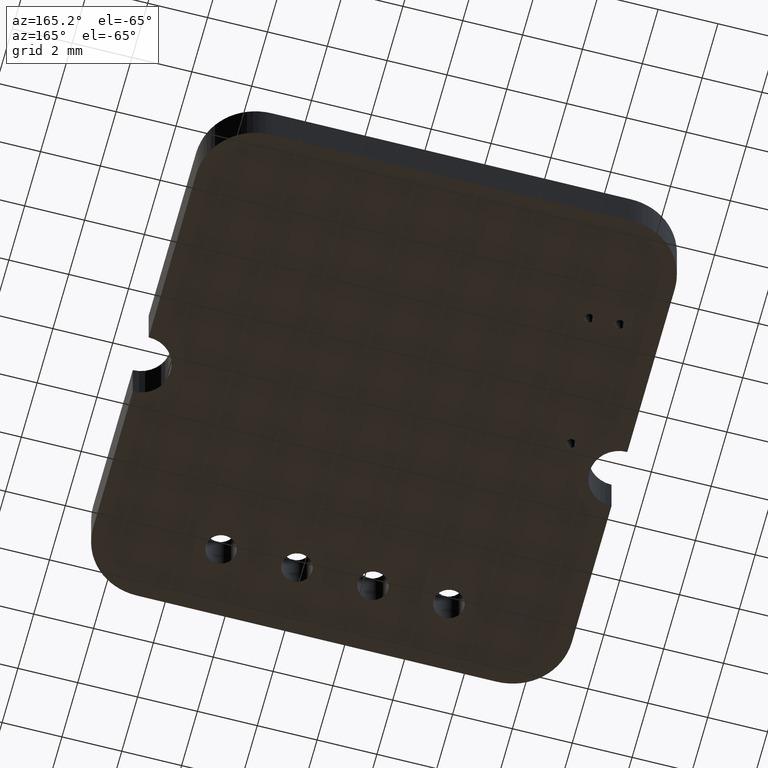
[diagram: clean part render]
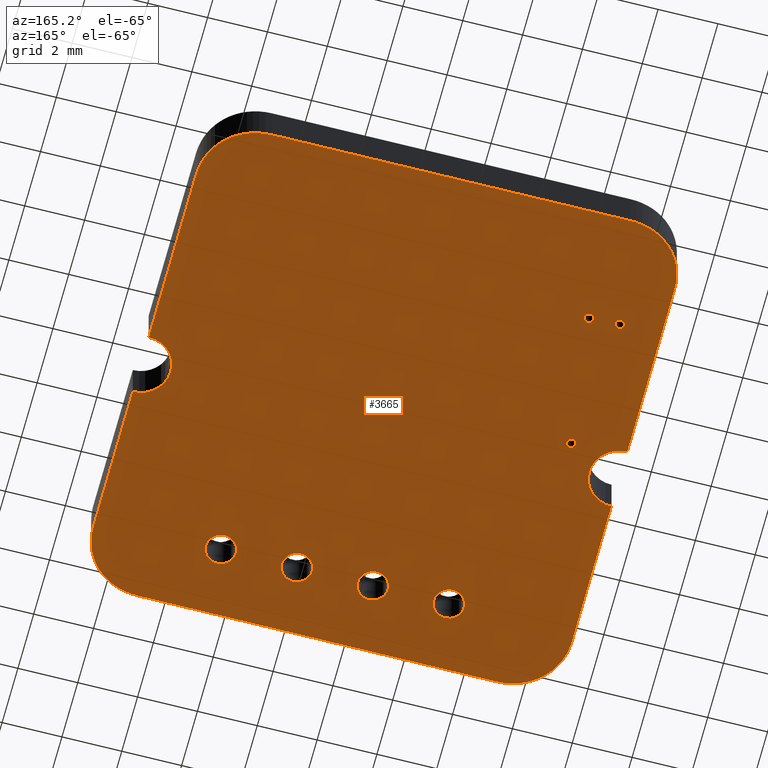
[diagram: same view with one face highlighted and labeled with its STEP entity id]
A machine part, auxiliary view. The second image highlights one B-rep face of the part: STEP entity #3665.
In plain terms, the highlighted planar face has unit normal (0, 0, -1).
Its self-contained STEP definition (entity closure, byte-faithful):
#53 = VERTEX_POINT('',#54);
#54 = CARTESIAN_POINT('',(14.889,-1.669,-0.82));
#71 = VERTEX_POINT('',#72);
#72 = CARTESIAN_POINT('',(2.889,-1.669,-0.82));
#78 = EDGE_CURVE('',#53,#71,#79,.T.);
#79 = LINE('',#80,#81);
#80 = CARTESIAN_POINT('',(14.889,-1.669,-0.82));
#81 = VECTOR('',#82,1.);
#82 = DIRECTION('',(-1.,0.E+000,0.E+000));
#93 = VERTEX_POINT('',#94);
#94 = CARTESIAN_POINT('',(15.09686,-1.6791,-0.82));
#109 = EDGE_CURVE('',#93,#53,#110,.T.);
#110 = LINE('',#111,#112);
#111 = CARTESIAN_POINT('',(15.09686,-1.6791,-0.82));
#112 = VECTOR('',#113,1.);
#113 = DIRECTION('',(-0.998821572954,4.853313714442E-002,0.E+000));
#133 = VERTEX_POINT('',#134);
#134 = CARTESIAN_POINT('',(2.68114,-1.6791,-0.82));
#140 = EDGE_CURVE('',#71,#133,#141,.T.);
#141 = LINE('',#142,#143);
#142 = CARTESIAN_POINT('',(2.889,-1.669,-0.82));
#143 = VECTOR('',#144,1.);
#144 = DIRECTION('',(-0.998821572954,-4.853313714442E-002,0.E+000));
#155 = VERTEX_POINT('',#156);
#156 = CARTESIAN_POINT('',(15.29794,-1.70879,-0.82));
#171 = EDGE_CURVE('',#155,#93,#172,.T.);
#172 = LINE('',#173,#174);
#173 = CARTESIAN_POINT('',(15.29794,-1.70879,-0.82));
#174 = VECTOR('',#175,1.);
#175 = DIRECTION('',(-0.989274402589,0.146069012397,0.E+000));
#195 = VERTEX_POINT('',#196);
#196 = CARTESIAN_POINT('',(2.48006,-1.70879,-0.82));
#202 = EDGE_CURVE('',#133,#195,#203,.T.);
#203 = LINE('',#204,#205);
#204 = CARTESIAN_POINT('',(2.68114,-1.6791,-0.82));
#205 = VECTOR('',#206,1.);
#206 = DIRECTION('',(-0.989274402589,-0.146069012397,0.E+000));
#217 = VERTEX_POINT('',#218);
#218 = CARTESIAN_POINT('',(15.49133,-1.75717,-0.82));
#233 = EDGE_CURVE('',#217,#155,#234,.T.);
#234 = LINE('',#235,#236);
#235 = CARTESIAN_POINT('',(15.49133,-1.75717,-0.82));
#236 = VECTOR('',#237,1.);
#237 = DIRECTION('',(-0.970104127996,0.242689062063,0.E+000));
#257 = VERTEX_POINT('',#258);
#258 = CARTESIAN_POINT('',(2.28667,-1.75717,-0.82));
#264 = EDGE_CURVE('',#195,#257,#265,.T.);
#265 = LINE('',#266,#267);
#266 = CARTESIAN_POINT('',(2.48006,-1.70879,-0.82));
#267 = VECTOR('',#268,1.);
#268 = DIRECTION('',(-0.970104127996,-0.242689062063,0.E+000));
#279 = VERTEX_POINT('',#280);
#280 = CARTESIAN_POINT('',(15.67611,-1.8233,-0.82));
#295 = EDGE_CURVE('',#279,#217,#296,.T.);
#296 = LINE('',#297,#298);
#297 = CARTESIAN_POINT('',(15.67611,-1.8233,-0.82));
#298 = VECTOR('',#299,1.);
#299 = DIRECTION('',(-0.941520370828,0.336956067339,0.E+000));
#319 = VERTEX_POINT('',#320);
#320 = CARTESIAN_POINT('',(2.10189,-1.8233,-0.82));
#326 = EDGE_CURVE('',#257,#319,#327,.T.);
#327 = LINE('',#328,#329);
#328 = CARTESIAN_POINT('',(2.28667,-1.75717,-0.82));
#329 = VECTOR('',#330,1.);
#330 = DIRECTION('',(-0.941520370828,-0.336956067339,0.E+000));
#341 = VERTEX_POINT('',#342);
#342 = CARTESIAN_POINT('',(15.85137,-1.90627,-0.82));
#357 = EDGE_CURVE('',#341,#279,#358,.T.);
#358 = LINE('',#359,#360);
#359 = CARTESIAN_POINT('',(15.85137,-1.90627,-0.82));
#360 = VECTOR('',#361,1.);
#361 = DIRECTION('',(-0.90383337441,0.42788460045,0.E+000));
#381 = VERTEX_POINT('',#382);
#382 = CARTESIAN_POINT('',(1.92663,-1.90627,-0.82));
#388 = EDGE_CURVE('',#319,#381,#389,.T.);
#389 = LINE('',#390,#391);
#390 = CARTESIAN_POINT('',(2.10189,-1.8233,-0.82));
#391 = VECTOR('',#392,1.);
#392 = DIRECTION('',(-0.90383337441,-0.42788460045,0.E+000));
#403 = VERTEX_POINT('',#404);
#404 = CARTESIAN_POINT('',(16.0162,-2.00518,-0.82));
#419 = EDGE_CURVE('',#403,#341,#420,.T.);
#420 = LINE('',#421,#422);
#421 = CARTESIAN_POINT('',(16.0162,-2.00518,-0.82));
#422 = VECTOR('',#423,1.);
#423 = DIRECTION('',(-0.857465383851,0.514541655746,0.E+000));
#443 = VERTEX_POINT('',#444);
#444 = CARTESIAN_POINT('',(1.7618,-2.00518,-0.82));
#450 = EDGE_CURVE('',#381,#443,#451,.T.);
#451 = LINE('',#452,#453);
#452 = CARTESIAN_POINT('',(1.92663,-1.90627,-0.82));
#453 = VECTOR('',#454,1.);
#454 = DIRECTION('',(-0.857465383851,-0.514541655746,0.E+000));
#465 = VERTEX_POINT('',#466);
#466 = CARTESIAN_POINT('',(16.16967,-2.1191,-0.82));
#481 = EDGE_CURVE('',#465,#403,#482,.T.);
#482 = LINE('',#483,#484);
#483 = CARTESIAN_POINT('',(16.16967,-2.1191,-0.82));
#484 = VECTOR('',#485,1.);
#485 = DIRECTION('',(-0.802959902094,0.596033049108,0.E+000));
#505 = VERTEX_POINT('',#506);
#506 = CARTESIAN_POINT('',(1.60833,-2.1191,-0.82));
#512 = EDGE_CURVE('',#443,#505,#513,.T.);
#513 = LINE('',#514,#515);
#514 = CARTESIAN_POINT('',(1.7618,-2.00518,-0.82));
#515 = VECTOR('',#516,1.);
#516 = DIRECTION('',(-0.802959902094,-0.596033049108,0.E+000));
#527 = VERTEX_POINT('',#528);
#528 = CARTESIAN_POINT('',(16.31088,-2.24712,-0.82));
#543 = EDGE_CURVE('',#527,#465,#544,.T.);
#544 = LINE('',#545,#546);
#545 = CARTESIAN_POINT('',(16.31088,-2.24712,-0.82));
#546 = VECTOR('',#547,1.);
#547 = DIRECTION('',(-0.740860487423,0.671658944833,0.E+000));
#567 = VERTEX_POINT('',#568);
#568 = CARTESIAN_POINT('',(1.46712,-2.24712,-0.82));
#574 = EDGE_CURVE('',#505,#567,#575,.T.);
#575 = LINE('',#576,#577);
#576 = CARTESIAN_POINT('',(1.60833,-2.1191,-0.82));
#577 = VECTOR('',#578,1.);
#578 = DIRECTION('',(-0.740860487423,-0.671658944833,0.E+000));
#589 = VERTEX_POINT('',#590);
#590 = CARTESIAN_POINT('',(16.4389,-2.38833,-0.82));
#605 = EDGE_CURVE('',#589,#527,#606,.T.);
#606 = LINE('',#607,#608);
#607 = CARTESIAN_POINT('',(16.4389,-2.38833,-0.82));
#608 = VECTOR('',#609,1.);
#609 = DIRECTION('',(-0.671658944833,0.740860487423,0.E+000));
#629 = VERTEX_POINT('',#630);
#630 = CARTESIAN_POINT('',(1.3391,-2.38833,-0.82));
#636 = EDGE_CURVE('',#567,#629,#637,.T.);
#637 = LINE('',#638,#639);
#638 = CARTESIAN_POINT('',(1.46712,-2.24712,-0.82));
#639 = VECTOR('',#640,1.);
#640 = DIRECTION('',(-0.671658944833,-0.740860487423,0.E+000));
#651 = VERTEX_POINT('',#652);
#652 = CARTESIAN_POINT('',(16.55282,-2.5418,-0.82));
#667 = EDGE_CURVE('',#651,#589,#668,.T.);
#668 = LINE('',#669,#670);
#669 = CARTESIAN_POINT('',(16.55282,-2.5418,-0.82));
#670 = VECTOR('',#671,1.);
#671 = DIRECTION('',(-0.596033049108,0.802959902094,0.E+000));
#691 = VERTEX_POINT('',#692);
#692 = CARTESIAN_POINT('',(1.22518,-2.5418,-0.82));
#698 = EDGE_CURVE('',#629,#691,#699,.T.);
#699 = LINE('',#700,#701);
#700 = CARTESIAN_POINT('',(1.3391,-2.38833,-0.82));
#701 = VECTOR('',#702,1.);
#702 = DIRECTION('',(-0.596033049108,-0.802959902094,0.E+000));
#713 = VERTEX_POINT('',#714);
#714 = CARTESIAN_POINT('',(16.65173,-2.70663,-0.82));
#729 = EDGE_CURVE('',#713,#651,#730,.T.);
#730 = LINE('',#731,#732);
#731 = CARTESIAN_POINT('',(16.65173,-2.70663,-0.82));
#732 = VECTOR('',#733,1.);
#733 = DIRECTION('',(-0.514541655746,0.857465383851,0.E+000));
#753 = VERTEX_POINT('',#754);
#754 = CARTESIAN_POINT('',(1.12627,-2.70663,-0.82));
#760 = EDGE_CURVE('',#691,#753,#761,.T.);
#761 = LINE('',#762,#763);
#762 = CARTESIAN_POINT('',(1.22518,-2.5418,-0.82));
#763 = VECTOR('',#764,1.);
#764 = DIRECTION('',(-0.514541655746,-0.857465383851,0.E+000));
#775 = VERTEX_POINT('',#776);
#776 = CARTESIAN_POINT('',(16.7347,-2.88189,-0.82));
#791 = EDGE_CURVE('',#775,#713,#792,.T.);
#792 = LINE('',#793,#794);
#793 = CARTESIAN_POINT('',(16.7347,-2.88189,-0.82));
#794 = VECTOR('',#795,1.);
#795 = DIRECTION('',(-0.42788460045,0.90383337441,0.E+000));
#815 = VERTEX_POINT('',#816);
#816 = CARTESIAN_POINT('',(1.0433,-2.88189,-0.82));
#822 = EDGE_CURVE('',#753,#815,#823,.T.);
#823 = LINE('',#824,#825);
#824 = CARTESIAN_POINT('',(1.12627,-2.70663,-0.82));
#825 = VECTOR('',#826,1.);
#826 = DIRECTION('',(-0.42788460045,-0.90383337441,0.E+000));
#837 = VERTEX_POINT('',#838);
#838 = CARTESIAN_POINT('',(16.80083,-3.06667,-0.82));
#853 = EDGE_CURVE('',#837,#775,#854,.T.);
#854 = LINE('',#855,#856);
#855 = CARTESIAN_POINT('',(16.80083,-3.06667,-0.82));
#856 = VECTOR('',#857,1.);
#857 = DIRECTION('',(-0.336956067339,0.941520370828,0.E+000));
#877 = VERTEX_POINT('',#878);
#878 = CARTESIAN_POINT('',(0.97717,-3.06667,-0.82));
#884 = EDGE_CURVE('',#815,#877,#885,.T.);
#885 = LINE('',#886,#887);
#886 = CARTESIAN_POINT('',(1.0433,-2.88189,-0.82));
#887 = VECTOR('',#888,1.);
#888 = DIRECTION('',(-0.336956067339,-0.941520370828,0.E+000));
#899 = VERTEX_POINT('',#900);
#900 = CARTESIAN_POINT('',(16.8492,-3.26006,-0.82));
#915 = EDGE_CURVE('',#899,#837,#916,.T.);
#916 = LINE('',#917,#918);
#917 = CARTESIAN_POINT('',(16.8492,-3.26006,-0.82));
#918 = VECTOR('',#919,1.);
#919 = DIRECTION('',(-0.24264185261,0.970115937073,0.E+000));
#939 = VERTEX_POINT('',#940);
#940 = CARTESIAN_POINT('',(0.9288,-3.26006,-0.82));
#946 = EDGE_CURVE('',#877,#939,#947,.T.);
#947 = LINE('',#948,#949);
#948 = CARTESIAN_POINT('',(0.97717,-3.06667,-0.82));
#949 = VECTOR('',#950,1.);
#950 = DIRECTION('',(-0.24264185261,-0.970115937073,0.E+000));
#961 = VERTEX_POINT('',#962);
#962 = CARTESIAN_POINT('',(16.8789,-3.46114,-0.82));
#977 = EDGE_CURVE('',#961,#899,#978,.T.);
#978 = LINE('',#979,#980);
#979 = CARTESIAN_POINT('',(16.8789,-3.46114,-0.82));
#980 = VECTOR('',#981,1.);
#981 = DIRECTION('',(-0.146117160232,0.989267292235,0.E+000));
#1001 = VERTEX_POINT('',#1002);
#1002 = CARTESIAN_POINT('',(0.8991,-3.46114,-0.82));
#1008 = EDGE_CURVE('',#939,#1001,#1009,.T.);
#1009 = LINE('',#1010,#1011);
#1010 = CARTESIAN_POINT('',(0.9288,-3.26006,-0.82));
#1011 = VECTOR('',#1012,1.);
#1012 = DIRECTION('',(-0.146117160232,-0.989267292235,0.E+000));
#1023 = VERTEX_POINT('',#1024);
#1024 = CARTESIAN_POINT('',(16.889,-3.669,-0.82));
#1039 = EDGE_CURVE('',#1023,#961,#1040,.T.);
#1040 = LINE('',#1041,#1042);
#1041 = CARTESIAN_POINT('',(16.889,-3.669,-0.82));
#1042 = VECTOR('',#1043,1.);
#1043 = DIRECTION('',(-4.853313714442E-002,0.998821572954,0.E+000));
#1063 = VERTEX_POINT('',#1064);
#1064 = CARTESIAN_POINT('',(0.889,-3.669,-0.82));
#1070 = EDGE_CURVE('',#1001,#1063,#1071,.T.);
#1071 = LINE('',#1072,#1073);
#1072 = CARTESIAN_POINT('',(0.8991,-3.46114,-0.82));
#1073 = VECTOR('',#1074,1.);
#1074 = DIRECTION('',(-4.853313714442E-002,-0.998821572954,0.E+000));
#1085 = VERTEX_POINT('',#1086);
#1086 = CARTESIAN_POINT('',(16.889,-9.669,-0.82));
#1101 = EDGE_CURVE('',#1085,#1023,#1102,.T.);
#1102 = LINE('',#1103,#1104);
#1103 = CARTESIAN_POINT('',(16.889,-9.669,-0.82));
#1104 = VECTOR('',#1105,1.);
#1105 = DIRECTION('',(0.E+000,1.,0.E+000));
#1125 = VERTEX_POINT('',#1126);
#1126 = CARTESIAN_POINT('',(0.889,-9.669,-0.82));
#1132 = EDGE_CURVE('',#1063,#1125,#1133,.T.);
#1133 = LINE('',#1134,#1135);
#1134 = CARTESIAN_POINT('',(0.889,-3.669,-0.82));
#1135 = VECTOR('',#1136,1.);
#1136 = DIRECTION('',(0.E+000,-1.,0.E+000));
#1147 = VERTEX_POINT('',#1148);
#1148 = CARTESIAN_POINT('',(16.68453,-9.6889,-0.82));
#1163 = EDGE_CURVE('',#1147,#1085,#1164,.T.);
#1164 = LINE('',#1165,#1166);
#1165 = CARTESIAN_POINT('',(16.68453,-9.6889,-0.82));
#1166 = VECTOR('',#1167,1.);
#1167 = DIRECTION('',(0.995297324502,9.686710401322E-002,0.E+000));
#1187 = VERTEX_POINT('',#1188);
#1188 = CARTESIAN_POINT('',(1.09347,-9.6889,-0.82));
#1194 = EDGE_CURVE('',#1125,#1187,#1195,.T.);
#1195 = LINE('',#1196,#1197);
#1196 = CARTESIAN_POINT('',(0.889,-9.669,-0.82));
#1197 = VECTOR('',#1198,1.);
#1198 = DIRECTION('',(0.995297324502,-9.686710401322E-002,0.E+000));
#1209 = VERTEX_POINT('',#1210);
#1210 = CARTESIAN_POINT('',(16.49544,-9.74615,-0.82));
#1225 = EDGE_CURVE('',#1209,#1147,#1226,.T.);
#1226 = LINE('',#1227,#1228);
#1227 = CARTESIAN_POINT('',(16.49544,-9.74615,-0.82));
#1228 = VECTOR('',#1229,1.);
#1229 = DIRECTION('',(0.957094616993,0.289775592696,0.E+000));
#1249 = VERTEX_POINT('',#1250);
#1250 = CARTESIAN_POINT('',(1.28256,-9.74615,-0.82));
#1256 = EDGE_CURVE('',#1187,#1249,#1257,.T.);
#1257 = LINE('',#1258,#1259);
#1258 = CARTESIAN_POINT('',(1.09347,-9.6889,-0.82));
#1259 = VECTOR('',#1260,1.);
#1260 = DIRECTION('',(0.957094616993,-0.289775592696,0.E+000));
#1271 = VERTEX_POINT('',#1272);
#1272 = CARTESIAN_POINT('',(16.3254,-9.83709,-0.82));
#1287 = EDGE_CURVE('',#1271,#1209,#1288,.T.);
#1288 = LINE('',#1289,#1290);
#1289 = CARTESIAN_POINT('',(16.3254,-9.83709,-0.82));
#1290 = VECTOR('',#1291,1.);
#1291 = DIRECTION('',(0.881809719663,0.471605362892,0.E+000));
#1311 = VERTEX_POINT('',#1312);
#1312 = CARTESIAN_POINT('',(1.4526,-9.83709,-0.82));
#1318 = EDGE_CURVE('',#1249,#1311,#1319,.T.);
#1319 = LINE('',#1320,#1321);
#1320 = CARTESIAN_POINT('',(1.28256,-9.74615,-0.82));
#1321 = VECTOR('',#1322,1.);
#1322 = DIRECTION('',(0.881809719663,-0.471605362892,0.E+000));
#1333 = VERTEX_POINT('',#1334);
#1334 = CARTESIAN_POINT('',(16.17806,-9.95806,-0.82));
#1349 = EDGE_CURVE('',#1333,#1271,#1350,.T.);
#1350 = LINE('',#1351,#1352);
#1351 = CARTESIAN_POINT('',(16.17806,-9.95806,-0.82));
#1352 = VECTOR('',#1353,1.);
#1353 = DIRECTION('',(0.772878764545,0.634553713499,0.E+000));
#1373 = VERTEX_POINT('',#1374);
#1374 = CARTESIAN_POINT('',(1.59994,-9.95806,-0.82));
#1380 = EDGE_CURVE('',#1311,#1373,#1381,.T.);
#1381 = LINE('',#1382,#1383);
#1382 = CARTESIAN_POINT('',(1.4526,-9.83709,-0.82));
#1383 = VECTOR('',#1384,1.);
#1384 = DIRECTION('',(0.772878764545,-0.634553713499,0.E+000));
#1395 = VERTEX_POINT('',#1396);
#1396 = CARTESIAN_POINT('',(16.05709,-10.1054,-0.82));
#1411 = EDGE_CURVE('',#1395,#1333,#1412,.T.);
#1412 = LINE('',#1413,#1414);
#1413 = CARTESIAN_POINT('',(16.05709,-10.1054,-0.82));
#1414 = VECTOR('',#1415,1.);
#1415 = DIRECTION('',(0.634553713499,0.772878764545,0.E+000));
#1435 = VERTEX_POINT('',#1436);
#1436 = CARTESIAN_POINT('',(1.72091,-10.1054,-0.82));
#1442 = EDGE_CURVE('',#1373,#1435,#1443,.T.);
#1443 = LINE('',#1444,#1445);
#1444 = CARTESIAN_POINT('',(1.59994,-9.95806,-0.82));
#1445 = VECTOR('',#1446,1.);
#1446 = DIRECTION('',(0.634553713499,-0.772878764545,0.E+000));
#1457 = VERTEX_POINT('',#1458);
#1458 = CARTESIAN_POINT('',(15.96615,-10.27545,-0.82));
#1473 = EDGE_CURVE('',#1457,#1395,#1474,.T.);
#1474 = LINE('',#1475,#1476);
#1475 = CARTESIAN_POINT('',(15.96615,-10.27545,-0.82));
#1476 = VECTOR('',#1477,1.);
#1477 = DIRECTION('',(0.47158379735,0.881821252906,0.E+000));
#1497 = VERTEX_POINT('',#1498);
#1498 = CARTESIAN_POINT('',(1.81185,-10.27545,-0.82));
#1504 = EDGE_CURVE('',#1435,#1497,#1505,.T.);
#1505 = LINE('',#1506,#1507);
#1506 = CARTESIAN_POINT('',(1.72091,-10.1054,-0.82));
#1507 = VECTOR('',#1508,1.);
#1508 = DIRECTION('',(0.47158379735,-0.881821252906,0.E+000));
#1519 = VERTEX_POINT('',#1520);
#1520 = CARTESIAN_POINT('',(15.9089,-10.46453,-0.82));
#1535 = EDGE_CURVE('',#1519,#1457,#1536,.T.);
#1536 = LINE('',#1537,#1538);
#1537 = CARTESIAN_POINT('',(15.9089,-10.46453,-0.82));
#1538 = VECTOR('',#1539,1.);
#1539 = DIRECTION('',(0.289789631272,0.957090366479,0.E+000));
#1559 = VERTEX_POINT('',#1560);
#1560 = CARTESIAN_POINT('',(1.8691,-10.46453,-0.82));
#1566 = EDGE_CURVE('',#1497,#1559,#1567,.T.);
#1567 = LINE('',#1568,#1569);
#1568 = CARTESIAN_POINT('',(1.81185,-10.27545,-0.82));
#1569 = VECTOR('',#1570,1.);
#1570 = DIRECTION('',(0.289789631272,-0.957090366479,0.E+000));
#1581 = VERTEX_POINT('',#1582);
#1582 = CARTESIAN_POINT('',(15.889,-10.669,-0.82));
#1597 = EDGE_CURVE('',#1581,#1519,#1598,.T.);
#1598 = LINE('',#1599,#1600);
#1599 = CARTESIAN_POINT('',(15.889,-10.669,-0.82));
#1600 = VECTOR('',#1601,1.);
#1601 = DIRECTION('',(9.686710401322E-002,0.995297324502,0.E+000));
#1621 = VERTEX_POINT('',#1622);
#1622 = CARTESIAN_POINT('',(1.889,-10.669,-0.82));
#1628 = EDGE_CURVE('',#1559,#1621,#1629,.T.);
#1629 = LINE('',#1630,#1631);
#1630 = CARTESIAN_POINT('',(1.8691,-10.46453,-0.82));
#1631 = VECTOR('',#1632,1.);
#1632 = DIRECTION('',(9.686710401322E-002,-0.995297324502,0.E+000));
#1643 = VERTEX_POINT('',#1644);
#1644 = CARTESIAN_POINT('',(15.9089,-10.87347,-0.82));
#1659 = EDGE_CURVE('',#1643,#1581,#1660,.T.);
#1660 = LINE('',#1661,#1662);
#1661 = CARTESIAN_POINT('',(15.9089,-10.87347,-0.82));
#1662 = VECTOR('',#1663,1.);
#1663 = DIRECTION('',(-9.686710401322E-002,0.995297324502,0.E+000));
#1683 = VERTEX_POINT('',#1684);
#1684 = CARTESIAN_POINT('',(1.8691,-10.87347,-0.82));
#1690 = EDGE_CURVE('',#1621,#1683,#1691,.T.);
#1691 = LINE('',#1692,#1693);
#1692 = CARTESIAN_POINT('',(1.889,-10.669,-0.82));
#1693 = VECTOR('',#1694,1.);
#1694 = DIRECTION('',(-9.686710401322E-002,-0.995297324502,0.E+000));
#1705 = VERTEX_POINT('',#1706);
#1706 = CARTESIAN_POINT('',(15.96615,-11.06255,-0.82));
#1721 = EDGE_CURVE('',#1705,#1643,#1722,.T.);
#1722 = LINE('',#1723,#1724);
#1723 = CARTESIAN_POINT('',(15.96615,-11.06255,-0.82));
#1724 = VECTOR('',#1725,1.);
#1725 = DIRECTION('',(-0.289789631272,0.957090366479,0.E+000));
#1745 = VERTEX_POINT('',#1746);
#1746 = CARTESIAN_POINT('',(1.81185,-11.06255,-0.82));
#1752 = EDGE_CURVE('',#1683,#1745,#1753,.T.);
#1753 = LINE('',#1754,#1755);
#1754 = CARTESIAN_POINT('',(1.8691,-10.87347,-0.82));
#1755 = VECTOR('',#1756,1.);
#1756 = DIRECTION('',(-0.289789631272,-0.957090366479,0.E+000));
#1767 = VERTEX_POINT('',#1768);
#1768 = CARTESIAN_POINT('',(16.05709,-11.2326,-0.82));
#1783 = EDGE_CURVE('',#1767,#1705,#1784,.T.);
#1784 = LINE('',#1785,#1786);
#1785 = CARTESIAN_POINT('',(16.05709,-11.2326,-0.82));
#1786 = VECTOR('',#1787,1.);
#1787 = DIRECTION('',(-0.47158379735,0.881821252906,0.E+000));
#1807 = VERTEX_POINT('',#1808);
#1808 = CARTESIAN_POINT('',(1.72091,-11.2326,-0.82));
#1814 = EDGE_CURVE('',#1745,#1807,#1815,.T.);
#1815 = LINE('',#1816,#1817);
#1816 = CARTESIAN_POINT('',(1.81185,-11.06255,-0.82));
#1817 = VECTOR('',#1818,1.);
#1818 = DIRECTION('',(-0.47158379735,-0.881821252906,0.E+000));
#1829 = VERTEX_POINT('',#1830);
#1830 = CARTESIAN_POINT('',(16.17806,-11.37994,-0.82));
#1845 = EDGE_CURVE('',#1829,#1767,#1846,.T.);
#1846 = LINE('',#1847,#1848);
#1847 = CARTESIAN_POINT('',(16.17806,-11.37994,-0.82));
#1848 = VECTOR('',#1849,1.);
#1849 = DIRECTION('',(-0.634553713499,0.772878764545,0.E+000));
#1869 = VERTEX_POINT('',#1870);
#1870 = CARTESIAN_POINT('',(1.59994,-11.37994,-0.82));
#1876 = EDGE_CURVE('',#1807,#1869,#1877,.T.);
#1877 = LINE('',#1878,#1879);
#1878 = CARTESIAN_POINT('',(1.72091,-11.2326,-0.82));
#1879 = VECTOR('',#1880,1.);
#1880 = DIRECTION('',(-0.634553713499,-0.772878764545,0.E+000));
#1891 = VERTEX_POINT('',#1892);
#1892 = CARTESIAN_POINT('',(16.3254,-11.50091,-0.82));
#1907 = EDGE_CURVE('',#1891,#1829,#1908,.T.);
#1908 = LINE('',#1909,#1910);
#1909 = CARTESIAN_POINT('',(16.3254,-11.50091,-0.82));
#1910 = VECTOR('',#1911,1.);
#1911 = DIRECTION('',(-0.772878764545,0.634553713499,0.E+000));
#1931 = VERTEX_POINT('',#1932);
#1932 = CARTESIAN_POINT('',(1.4526,-11.50091,-0.82));
#1938 = EDGE_CURVE('',#1869,#1931,#1939,.T.);
#1939 = LINE('',#1940,#1941);
#1940 = CARTESIAN_POINT('',(1.59994,-11.37994,-0.82));
#1941 = VECTOR('',#1942,1.);
#1942 = DIRECTION('',(-0.772878764545,-0.634553713499,0.E+000));
#1953 = VERTEX_POINT('',#1954);
#1954 = CARTESIAN_POINT('',(16.49544,-11.59185,-0.82));
#1969 = EDGE_CURVE('',#1953,#1891,#1970,.T.);
#1970 = LINE('',#1971,#1972);
#1971 = CARTESIAN_POINT('',(16.49544,-11.59185,-0.82));
#1972 = VECTOR('',#1973,1.);
#1973 = DIRECTION('',(-0.881809719663,0.471605362892,0.E+000));
#1993 = VERTEX_POINT('',#1994);
#1994 = CARTESIAN_POINT('',(1.28256,-11.59185,-0.82));
#2000 = EDGE_CURVE('',#1931,#1993,#2001,.T.);
#2001 = LINE('',#2002,#2003);
#2002 = CARTESIAN_POINT('',(1.4526,-11.50091,-0.82));
#2003 = VECTOR('',#2004,1.);
#2004 = DIRECTION('',(-0.881809719663,-0.471605362892,0.E+000));
#2015 = VERTEX_POINT('',#2016);
#2016 = CARTESIAN_POINT('',(16.68453,-11.6491,-0.82));
#2031 = EDGE_CURVE('',#2015,#1953,#2032,.T.);
#2032 = LINE('',#2033,#2034);
#2033 = CARTESIAN_POINT('',(16.68453,-11.6491,-0.82));
#2034 = VECTOR('',#2035,1.);
#2035 = DIRECTION('',(-0.957094616993,0.289775592696,0.E+000));
#2055 = VERTEX_POINT('',#2056);
#2056 = CARTESIAN_POINT('',(1.09347,-11.6491,-0.82));
#2062 = EDGE_CURVE('',#1993,#2055,#2063,.T.);
#2063 = LINE('',#2064,#2065);
#2064 = CARTESIAN_POINT('',(1.28256,-11.59185,-0.82));
#2065 = VECTOR('',#2066,1.);
#2066 = DIRECTION('',(-0.957094616993,-0.289775592696,0.E+000));
#2077 = VERTEX_POINT('',#2078);
#2078 = CARTESIAN_POINT('',(16.889,-11.669,-0.82));
#2093 = EDGE_CURVE('',#2077,#2015,#2094,.T.);
#2094 = LINE('',#2095,#2096);
#2095 = CARTESIAN_POINT('',(16.889,-11.669,-0.82));
#2096 = VECTOR('',#2097,1.);
#2097 = DIRECTION('',(-0.995297324502,9.686710401322E-002,0.E+000));
#2117 = VERTEX_POINT('',#2118);
#2118 = CARTESIAN_POINT('',(0.889,-11.669,-0.82));
#2124 = EDGE_CURVE('',#2055,#2117,#2125,.T.);
#2125 = LINE('',#2126,#2127);
#2126 = CARTESIAN_POINT('',(1.09347,-11.6491,-0.82));
#2127 = VECTOR('',#2128,1.);
#2128 = DIRECTION('',(-0.995297324502,-9.686710401322E-002,0.E+000));
#2139 = VERTEX_POINT('',#2140);
#2140 = CARTESIAN_POINT('',(16.889,-16.669,-0.82));
#2155 = EDGE_CURVE('',#2139,#2077,#2156,.T.);
#2156 = LINE('',#2157,#2158);
#2157 = CARTESIAN_POINT('',(16.889,-16.669,-0.82));
#2158 = VECTOR('',#2159,1.);
#2159 = DIRECTION('',(0.E+000,1.,0.E+000));
#2179 = VERTEX_POINT('',#2180);
#2180 = CARTESIAN_POINT('',(0.889,-16.669,-0.82));
#2186 = EDGE_CURVE('',#2117,#2179,#2187,.T.);
#2187 = LINE('',#2188,#2189);
#2188 = CARTESIAN_POINT('',(0.889,-11.669,-0.82));
#2189 = VECTOR('',#2190,1.);
#2190 = DIRECTION('',(0.E+000,-1.,0.E+000));
#2201 = VERTEX_POINT('',#2202);
#2202 = CARTESIAN_POINT('',(16.8789,-16.87686,-0.82));
#2217 = EDGE_CURVE('',#2201,#2139,#2218,.T.);
#2218 = LINE('',#2219,#2220);
#2219 = CARTESIAN_POINT('',(16.8789,-16.87686,-0.82));
#2220 = VECTOR('',#2221,1.);
#2221 = DIRECTION('',(4.853313714442E-002,0.998821572954,0.E+000));
#2241 = VERTEX_POINT('',#2242);
#2242 = CARTESIAN_POINT('',(0.8991,-16.87686,-0.82));
#2248 = EDGE_CURVE('',#2179,#2241,#2249,.T.);
#2249 = LINE('',#2250,#2251);
#2250 = CARTESIAN_POINT('',(0.889,-16.669,-0.82));
#2251 = VECTOR('',#2252,1.);
#2252 = DIRECTION('',(4.853313714442E-002,-0.998821572954,0.E+000));
#2263 = VERTEX_POINT('',#2264);
#2264 = CARTESIAN_POINT('',(16.8492,-17.07794,-0.82));
#2279 = EDGE_CURVE('',#2263,#2201,#2280,.T.);
#2280 = LINE('',#2281,#2282);
#2281 = CARTESIAN_POINT('',(16.8492,-17.07794,-0.82));
#2282 = VECTOR('',#2283,1.);
#2283 = DIRECTION('',(0.146117160232,0.989267292235,0.E+000));
#2303 = VERTEX_POINT('',#2304);
#2304 = CARTESIAN_POINT('',(0.9288,-17.07794,-0.82));
#2310 = EDGE_CURVE('',#2241,#2303,#2311,.T.);
#2311 = LINE('',#2312,#2313);
#2312 = CARTESIAN_POINT('',(0.8991,-16.87686,-0.82));
#2313 = VECTOR('',#2314,1.);
#2314 = DIRECTION('',(0.146117160232,-0.989267292235,0.E+000));
#2325 = VERTEX_POINT('',#2326);
#2326 = CARTESIAN_POINT('',(16.80083,-17.27133,-0.82));
#2341 = EDGE_CURVE('',#2325,#2263,#2342,.T.);
#2342 = LINE('',#2343,#2344);
#2343 = CARTESIAN_POINT('',(16.80083,-17.27133,-0.82));
#2344 = VECTOR('',#2345,1.);
#2345 = DIRECTION('',(0.24264185261,0.970115937073,0.E+000));
#2365 = VERTEX_POINT('',#2366);
#2366 = CARTESIAN_POINT('',(0.97717,-17.27133,-0.82));
#2372 = EDGE_CURVE('',#2303,#2365,#2373,.T.);
#2373 = LINE('',#2374,#2375);
#2374 = CARTESIAN_POINT('',(0.9288,-17.07794,-0.82));
#2375 = VECTOR('',#2376,1.);
#2376 = DIRECTION('',(0.24264185261,-0.970115937073,0.E+000));
#2387 = VERTEX_POINT('',#2388);
#2388 = CARTESIAN_POINT('',(16.7347,-17.45611,-0.82));
#2403 = EDGE_CURVE('',#2387,#2325,#2404,.T.);
#2404 = LINE('',#2405,#2406);
#2405 = CARTESIAN_POINT('',(16.7347,-17.45611,-0.82));
#2406 = VECTOR('',#2407,1.);
#2407 = DIRECTION('',(0.336956067339,0.941520370828,0.E+000));
#2427 = VERTEX_POINT('',#2428);
#2428 = CARTESIAN_POINT('',(1.0433,-17.45611,-0.82));
#2434 = EDGE_CURVE('',#2365,#2427,#2435,.T.);
#2435 = LINE('',#2436,#2437);
#2436 = CARTESIAN_POINT('',(0.97717,-17.27133,-0.82));
#2437 = VECTOR('',#2438,1.);
#2438 = DIRECTION('',(0.336956067339,-0.941520370828,0.E+000));
#2449 = VERTEX_POINT('',#2450);
#2450 = CARTESIAN_POINT('',(16.65173,-17.63137,-0.82));
#2465 = EDGE_CURVE('',#2449,#2387,#2466,.T.);
#2466 = LINE('',#2467,#2468);
#2467 = CARTESIAN_POINT('',(16.65173,-17.63137,-0.82));
#2468 = VECTOR('',#2469,1.);
#2469 = DIRECTION('',(0.42788460045,0.90383337441,0.E+000));
#2489 = VERTEX_POINT('',#2490);
#2490 = CARTESIAN_POINT('',(1.12627,-17.63137,-0.82));
#2496 = EDGE_CURVE('',#2427,#2489,#2497,.T.);
#2497 = LINE('',#2498,#2499);
#2498 = CARTESIAN_POINT('',(1.0433,-17.45611,-0.82));
#2499 = VECTOR('',#2500,1.);
#2500 = DIRECTION('',(0.42788460045,-0.90383337441,0.E+000));
#2511 = VERTEX_POINT('',#2512);
#2512 = CARTESIAN_POINT('',(16.55282,-17.7962,-0.82));
#2527 = EDGE_CURVE('',#2511,#2449,#2528,.T.);
#2528 = LINE('',#2529,#2530);
#2529 = CARTESIAN_POINT('',(16.55282,-17.7962,-0.82));
#2530 = VECTOR('',#2531,1.);
#2531 = DIRECTION('',(0.514541655746,0.857465383851,0.E+000));
#2551 = VERTEX_POINT('',#2552);
#2552 = CARTESIAN_POINT('',(1.22518,-17.7962,-0.82));
#2558 = EDGE_CURVE('',#2489,#2551,#2559,.T.);
#2559 = LINE('',#2560,#2561);
#2560 = CARTESIAN_POINT('',(1.12627,-17.63137,-0.82));
#2561 = VECTOR('',#2562,1.);
#2562 = DIRECTION('',(0.514541655746,-0.857465383851,0.E+000));
#2573 = VERTEX_POINT('',#2574);
#2574 = CARTESIAN_POINT('',(16.4389,-17.94967,-0.82));
#2589 = EDGE_CURVE('',#2573,#2511,#2590,.T.);
#2590 = LINE('',#2591,#2592);
#2591 = CARTESIAN_POINT('',(16.4389,-17.94967,-0.82));
#2592 = VECTOR('',#2593,1.);
#2593 = DIRECTION('',(0.596033049108,0.802959902094,0.E+000));
#2613 = VERTEX_POINT('',#2614);
#2614 = CARTESIAN_POINT('',(1.3391,-17.94967,-0.82));
#2620 = EDGE_CURVE('',#2551,#2613,#2621,.T.);
#2621 = LINE('',#2622,#2623);
#2622 = CARTESIAN_POINT('',(1.22518,-17.7962,-0.82));
#2623 = VECTOR('',#2624,1.);
#2624 = DIRECTION('',(0.596033049108,-0.802959902094,0.E+000));
#2635 = VERTEX_POINT('',#2636);
#2636 = CARTESIAN_POINT('',(16.31088,-18.09088,-0.82));
#2651 = EDGE_CURVE('',#2635,#2573,#2652,.T.);
#2652 = LINE('',#2653,#2654);
#2653 = CARTESIAN_POINT('',(16.31088,-18.09088,-0.82));
#2654 = VECTOR('',#2655,1.);
#2655 = DIRECTION('',(0.671658944833,0.740860487423,0.E+000));
#2675 = VERTEX_POINT('',#2676);
#2676 = CARTESIAN_POINT('',(1.46712,-18.09088,-0.82));
#2682 = EDGE_CURVE('',#2613,#2675,#2683,.T.);
#2683 = LINE('',#2684,#2685);
#2684 = CARTESIAN_POINT('',(1.3391,-17.94967,-0.82));
#2685 = VECTOR('',#2686,1.);
#2686 = DIRECTION('',(0.671658944833,-0.740860487423,0.E+000));
#2697 = VERTEX_POINT('',#2698);
#2698 = CARTESIAN_POINT('',(16.16967,-18.2189,-0.82));
#2713 = EDGE_CURVE('',#2697,#2635,#2714,.T.);
#2714 = LINE('',#2715,#2716);
#2715 = CARTESIAN_POINT('',(16.16967,-18.2189,-0.82));
#2716 = VECTOR('',#2717,1.);
#2717 = DIRECTION('',(0.740860487423,0.671658944833,0.E+000));
#2737 = VERTEX_POINT('',#2738);
#2738 = CARTESIAN_POINT('',(1.60833,-18.2189,-0.82));
#2744 = EDGE_CURVE('',#2675,#2737,#2745,.T.);
#2745 = LINE('',#2746,#2747);
#2746 = CARTESIAN_POINT('',(1.46712,-18.09088,-0.82));
#2747 = VECTOR('',#2748,1.);
#2748 = DIRECTION('',(0.740860487423,-0.671658944833,0.E+000));
#2759 = VERTEX_POINT('',#2760);
#2760 = CARTESIAN_POINT('',(16.0162,-18.33282,-0.82));
#2775 = EDGE_CURVE('',#2759,#2697,#2776,.T.);
#2776 = LINE('',#2777,#2778);
#2777 = CARTESIAN_POINT('',(16.0162,-18.33282,-0.82));
#2778 = VECTOR('',#2779,1.);
#2779 = DIRECTION('',(0.802959902094,0.596033049108,0.E+000));
#2799 = VERTEX_POINT('',#2800);
#2800 = CARTESIAN_POINT('',(1.7618,-18.33282,-0.82));
#2806 = EDGE_CURVE('',#2737,#2799,#2807,.T.);
#2807 = LINE('',#2808,#2809);
#2808 = CARTESIAN_POINT('',(1.60833,-18.2189,-0.82));
#2809 = VECTOR('',#2810,1.);
#2810 = DIRECTION('',(0.802959902094,-0.596033049108,0.E+000));
#2821 = VERTEX_POINT('',#2822);
#2822 = CARTESIAN_POINT('',(15.85137,-18.43173,-0.82));
#2837 = EDGE_CURVE('',#2821,#2759,#2838,.T.);
#2838 = LINE('',#2839,#2840);
#2839 = CARTESIAN_POINT('',(15.85137,-18.43173,-0.82));
#2840 = VECTOR('',#2841,1.);
#2841 = DIRECTION('',(0.857465383851,0.514541655746,0.E+000));
#2861 = VERTEX_POINT('',#2862);
#2862 = CARTESIAN_POINT('',(1.92663,-18.43173,-0.82));
#2868 = EDGE_CURVE('',#2799,#2861,#2869,.T.);
#2869 = LINE('',#2870,#2871);
#2870 = CARTESIAN_POINT('',(1.7618,-18.33282,-0.82));
#2871 = VECTOR('',#2872,1.);
#2872 = DIRECTION('',(0.857465383851,-0.514541655746,0.E+000));
#2883 = VERTEX_POINT('',#2884);
#2884 = CARTESIAN_POINT('',(15.67611,-18.5147,-0.82));
#2899 = EDGE_CURVE('',#2883,#2821,#2900,.T.);
#2900 = LINE('',#2901,#2902);
#2901 = CARTESIAN_POINT('',(15.67611,-18.5147,-0.82));
#2902 = VECTOR('',#2903,1.);
#2903 = DIRECTION('',(0.90383337441,0.42788460045,0.E+000));
#2923 = VERTEX_POINT('',#2924);
#2924 = CARTESIAN_POINT('',(2.10189,-18.5147,-0.82));
#2930 = EDGE_CURVE('',#2861,#2923,#2931,.T.);
#2931 = LINE('',#2932,#2933);
#2932 = CARTESIAN_POINT('',(1.92663,-18.43173,-0.82));
#2933 = VECTOR('',#2934,1.);
#2934 = DIRECTION('',(0.90383337441,-0.42788460045,0.E+000));
#2945 = VERTEX_POINT('',#2946);
#2946 = CARTESIAN_POINT('',(15.49133,-18.58083,-0.82));
#2961 = EDGE_CURVE('',#2945,#2883,#2962,.T.);
#2962 = LINE('',#2963,#2964);
#2963 = CARTESIAN_POINT('',(15.49133,-18.58083,-0.82));
#2964 = VECTOR('',#2965,1.);
#2965 = DIRECTION('',(0.941520370828,0.336956067339,0.E+000));
#2985 = VERTEX_POINT('',#2986);
#2986 = CARTESIAN_POINT('',(2.28667,-18.58083,-0.82));
#2992 = EDGE_CURVE('',#2923,#2985,#2993,.T.);
#2993 = LINE('',#2994,#2995);
#2994 = CARTESIAN_POINT('',(2.10189,-18.5147,-0.82));
#2995 = VECTOR('',#2996,1.);
#2996 = DIRECTION('',(0.941520370828,-0.336956067339,0.E+000));
#3007 = VERTEX_POINT('',#3008);
#3008 = CARTESIAN_POINT('',(15.29794,-18.62921,-0.82));
#3023 = EDGE_CURVE('',#3007,#2945,#3024,.T.);
#3024 = LINE('',#3025,#3026);
#3025 = CARTESIAN_POINT('',(15.29794,-18.62921,-0.82));
#3026 = VECTOR('',#3027,1.);
#3027 = DIRECTION('',(0.970104127996,0.242689062063,0.E+000));
#3047 = VERTEX_POINT('',#3048);
#3048 = CARTESIAN_POINT('',(2.48006,-18.62921,-0.82));
#3054 = EDGE_CURVE('',#2985,#3047,#3055,.T.);
#3055 = LINE('',#3056,#3057);
#3056 = CARTESIAN_POINT('',(2.28667,-18.58083,-0.82));
#3057 = VECTOR('',#3058,1.);
#3058 = DIRECTION('',(0.970104127996,-0.242689062063,0.E+000));
#3069 = VERTEX_POINT('',#3070);
#3070 = CARTESIAN_POINT('',(15.09686,-18.6589,-0.82));
#3085 = EDGE_CURVE('',#3069,#3007,#3086,.T.);
#3086 = LINE('',#3087,#3088);
#3087 = CARTESIAN_POINT('',(15.09686,-18.6589,-0.82));
#3088 = VECTOR('',#3089,1.);
#3089 = DIRECTION('',(0.989274402589,0.146069012397,0.E+000));
#3109 = VERTEX_POINT('',#3110);
#3110 = CARTESIAN_POINT('',(2.68114,-18.6589,-0.82));
#3116 = EDGE_CURVE('',#3047,#3109,#3117,.T.);
#3117 = LINE('',#3118,#3119);
#3118 = CARTESIAN_POINT('',(2.48006,-18.62921,-0.82));
#3119 = VECTOR('',#3120,1.);
#3120 = DIRECTION('',(0.989274402589,-0.146069012397,0.E+000));
#3131 = VERTEX_POINT('',#3132);
#3132 = CARTESIAN_POINT('',(14.889,-18.669,-0.82));
#3147 = EDGE_CURVE('',#3131,#3069,#3148,.T.);
#3148 = LINE('',#3149,#3150);
#3149 = CARTESIAN_POINT('',(14.889,-18.669,-0.82));
#3150 = VECTOR('',#3151,1.);
#3151 = DIRECTION('',(0.998821572954,4.853313714441E-002,0.E+000));
#3171 = VERTEX_POINT('',#3172);
#3172 = CARTESIAN_POINT('',(2.889,-18.669,-0.82));
#3178 = EDGE_CURVE('',#3109,#3171,#3179,.T.);
#3179 = LINE('',#3180,#3181);
#3180 = CARTESIAN_POINT('',(2.68114,-18.6589,-0.82));
#3181 = VECTOR('',#3182,1.);
#3182 = DIRECTION('',(0.998821572954,-4.853313714441E-002,0.E+000));
#3200 = EDGE_CURVE('',#3171,#3131,#3201,.T.);
#3201 = LINE('',#3202,#3203);
#3202 = CARTESIAN_POINT('',(2.889,-18.669,-0.82));
#3203 = VECTOR('',#3204,1.);
#3204 = DIRECTION('',(1.,0.E+000,0.E+000));
#3214 = EDGE_CURVE('',#3215,#3217,#3219,.T.);
#3215 = VERTEX_POINT('',#3216);
#3216 = CARTESIAN_POINT('',(3.15053,-5.37591,-0.82));
#3217 = VERTEX_POINT('',#3218);
#3218 = CARTESIAN_POINT('',(3.45053,-5.37591,-0.82));
#3219 = CIRCLE('',#3220,0.15);
#3220 = AXIS2_PLACEMENT_3D('',#3221,#3222,#3223);
#3221 = CARTESIAN_POINT('',(3.30053,-5.37591,-0.82));
#3222 = DIRECTION('',(0.E+000,0.E+000,1.));
#3223 = DIRECTION('',(1.,0.E+000,-0.E+000));
#3263 = EDGE_CURVE('',#3217,#3215,#3264,.T.);
#3264 = CIRCLE('',#3265,0.15);
#3265 = AXIS2_PLACEMENT_3D('',#3266,#3267,#3268);
#3266 = CARTESIAN_POINT('',(3.30053,-5.37591,-0.82));
#3267 = DIRECTION('',(0.E+000,0.E+000,1.));
#3268 = DIRECTION('',(1.,0.E+000,-0.E+000));
#3279 = EDGE_CURVE('',#3280,#3282,#3284,.T.);
#3280 = VERTEX_POINT('',#3281);
#3281 = CARTESIAN_POINT('',(2.135,-5.334,-0.82));
#3282 = VERTEX_POINT('',#3283);
#3283 = CARTESIAN_POINT('',(2.435,-5.334,-0.82));
#3284 = CIRCLE('',#3285,0.15);
#3285 = AXIS2_PLACEMENT_3D('',#3286,#3287,#3288);
#3286 = CARTESIAN_POINT('',(2.285,-5.334,-0.82));
#3287 = DIRECTION('',(0.E+000,0.E+000,1.));
#3288 = DIRECTION('',(1.,0.E+000,-0.E+000));
#3328 = EDGE_CURVE('',#3282,#3280,#3329,.T.);
#3329 = CIRCLE('',#3330,0.15);
#3330 = AXIS2_PLACEMENT_3D('',#3331,#3332,#3333);
#3331 = CARTESIAN_POINT('',(2.285,-5.334,-0.82));
#3332 = DIRECTION('',(0.E+000,0.E+000,1.));
#3333 = DIRECTION('',(1.,0.E+000,-0.E+000));
#3344 = EDGE_CURVE('',#3345,#3347,#3349,.T.);
#3345 = VERTEX_POINT('',#3346);
#3346 = CARTESIAN_POINT('',(2.568,-9.84065,-0.82));
#3347 = VERTEX_POINT('',#3348);
#3348 = CARTESIAN_POINT('',(2.868,-9.84065,-0.82));
#3349 = CIRCLE('',#3350,0.15);
#3350 = AXIS2_PLACEMENT_3D('',#3351,#3352,#3353);
#3351 = CARTESIAN_POINT('',(2.718,-9.84065,-0.82));
#3352 = DIRECTION('',(0.E+000,0.E+000,1.));
#3353 = DIRECTION('',(1.,0.E+000,-0.E+000));
#3393 = EDGE_CURVE('',#3347,#3345,#3394,.T.);
#3394 = CIRCLE('',#3395,0.15);
#3395 = AXIS2_PLACEMENT_3D('',#3396,#3397,#3398);
#3396 = CARTESIAN_POINT('',(2.718,-9.84065,-0.82));
#3397 = DIRECTION('',(0.E+000,0.E+000,1.));
#3398 = DIRECTION('',(1.,0.E+000,-0.E+000));
#3409 = EDGE_CURVE('',#3410,#3412,#3414,.T.);
#3410 = VERTEX_POINT('',#3411);
#3411 = CARTESIAN_POINT('',(4.571,-16.383,-0.82));
#3412 = VERTEX_POINT('',#3413);
#3413 = CARTESIAN_POINT('',(5.587,-16.383,-0.82));
#3414 = CIRCLE('',#3415,0.508);
#3415 = AXIS2_PLACEMENT_3D('',#3416,#3417,#3418);
#3416 = CARTESIAN_POINT('',(5.079,-16.383,-0.82));
#3417 = DIRECTION('',(0.E+000,0.E+000,1.));
#3418 = DIRECTION('',(1.,0.E+000,-0.E+000));
#3458 = EDGE_CURVE('',#3412,#3410,#3459,.T.);
#3459 = CIRCLE('',#3460,0.508);
#3460 = AXIS2_PLACEMENT_3D('',#3461,#3462,#3463);
#3461 = CARTESIAN_POINT('',(5.079,-16.383,-0.82));
#3462 = DIRECTION('',(0.E+000,0.E+000,1.));
#3463 = DIRECTION('',(1.,0.E+000,-0.E+000));
#3474 = EDGE_CURVE('',#3475,#3477,#3479,.T.);
#3475 = VERTEX_POINT('',#3476);
#3476 = CARTESIAN_POINT('',(9.651,-16.383,-0.82));
#3477 = VERTEX_POINT('',#3478);
#3478 = CARTESIAN_POINT('',(10.667,-16.383,-0.82));
#3479 = CIRCLE('',#3480,0.508);
#3480 = AXIS2_PLACEMENT_3D('',#3481,#3482,#3483);
#3481 = CARTESIAN_POINT('',(10.159,-16.383,-0.82));
#3482 = DIRECTION('',(0.E+000,0.E+000,1.));
#3483 = DIRECTION('',(1.,0.E+000,-0.E+000));
#3523 = EDGE_CURVE('',#3477,#3475,#3524,.T.);
#3524 = CIRCLE('',#3525,0.508);
#3525 = AXIS2_PLACEMENT_3D('',#3526,#3527,#3528);
#3526 = CARTESIAN_POINT('',(10.159,-16.383,-0.82));
#3527 = DIRECTION('',(0.E+000,0.E+000,1.));
#3528 = DIRECTION('',(1.,0.E+000,-0.E+000));
#3539 = EDGE_CURVE('',#3540,#3542,#3544,.T.);
#3540 = VERTEX_POINT('',#3541);
#3541 = CARTESIAN_POINT('',(7.111,-16.383,-0.82));
#3542 = VERTEX_POINT('',#3543);
#3543 = CARTESIAN_POINT('',(8.127,-16.383,-0.82));
#3544 = CIRCLE('',#3545,0.508);
#3545 = AXIS2_PLACEMENT_3D('',#3546,#3547,#3548);
#3546 = CARTESIAN_POINT('',(7.619,-16.383,-0.82));
#3547 = DIRECTION('',(0.E+000,0.E+000,1.));
#3548 = DIRECTION('',(1.,0.E+000,-0.E+000));
#3588 = EDGE_CURVE('',#3542,#3540,#3589,.T.);
#3589 = CIRCLE('',#3590,0.508);
#3590 = AXIS2_PLACEMENT_3D('',#3591,#3592,#3593);
#3591 = CARTESIAN_POINT('',(7.619,-16.383,-0.82));
#3592 = DIRECTION('',(0.E+000,0.E+000,1.));
#3593 = DIRECTION('',(1.,0.E+000,-0.E+000));
#3604 = EDGE_CURVE('',#3605,#3607,#3609,.T.);
#3605 = VERTEX_POINT('',#3606);
#3606 = CARTESIAN_POINT('',(12.191,-16.383,-0.82));
#3607 = VERTEX_POINT('',#3608);
#3608 = CARTESIAN_POINT('',(13.207,-16.383,-0.82));
#3609 = CIRCLE('',#3610,0.508);
#3610 = AXIS2_PLACEMENT_3D('',#3611,#3612,#3613);
#3611 = CARTESIAN_POINT('',(12.699,-16.383,-0.82));
#3612 = DIRECTION('',(0.E+000,0.E+000,1.));
#3613 = DIRECTION('',(1.,0.E+000,-0.E+000));
#3653 = EDGE_CURVE('',#3607,#3605,#3654,.T.);
#3654 = CIRCLE('',#3655,0.508);
#3655 = AXIS2_PLACEMENT_3D('',#3656,#3657,#3658);
#3656 = CARTESIAN_POINT('',(12.699,-16.383,-0.82));
#3657 = DIRECTION('',(0.E+000,0.E+000,1.));
#3658 = DIRECTION('',(1.,0.E+000,-0.E+000));
#3665 = ADVANCED_FACE('',(#3666,#3770,#3774,#3778,#3782,#3786,#3790,
    #3794),#3798,.T.);
#3666 = FACE_BOUND('',#3667,.T.);
#3667 = EDGE_LOOP('',(#3668,#3669,#3670,#3671,#3672,#3673,#3674,#3675,
    #3676,#3677,#3678,#3679,#3680,#3681,#3682,#3683,#3684,#3685,#3686,
    #3687,#3688,#3689,#3690,#3691,#3692,#3693,#3694,#3695,#3696,#3697,
    #3698,#3699,#3700,#3701,#3702,#3703,#3704,#3705,#3706,#3707,#3708,
    #3709,#3710,#3711,#3712,#3713,#3714,#3715,#3716,#3717,#3718,#3719,
    #3720,#3721,#3722,#3723,#3724,#3725,#3726,#3727,#3728,#3729,#3730,
    #3731,#3732,#3733,#3734,#3735,#3736,#3737,#3738,#3739,#3740,#3741,
    #3742,#3743,#3744,#3745,#3746,#3747,#3748,#3749,#3750,#3751,#3752,
    #3753,#3754,#3755,#3756,#3757,#3758,#3759,#3760,#3761,#3762,#3763,
    #3764,#3765,#3766,#3767,#3768,#3769));
#3668 = ORIENTED_EDGE('',*,*,#78,.F.);
#3669 = ORIENTED_EDGE('',*,*,#109,.F.);
#3670 = ORIENTED_EDGE('',*,*,#171,.F.);
#3671 = ORIENTED_EDGE('',*,*,#233,.F.);
#3672 = ORIENTED_EDGE('',*,*,#295,.F.);
#3673 = ORIENTED_EDGE('',*,*,#357,.F.);
#3674 = ORIENTED_EDGE('',*,*,#419,.F.);
#3675 = ORIENTED_EDGE('',*,*,#481,.F.);
#3676 = ORIENTED_EDGE('',*,*,#543,.F.);
#3677 = ORIENTED_EDGE('',*,*,#605,.F.);
#3678 = ORIENTED_EDGE('',*,*,#667,.F.);
#3679 = ORIENTED_EDGE('',*,*,#729,.F.);
#3680 = ORIENTED_EDGE('',*,*,#791,.F.);
#3681 = ORIENTED_EDGE('',*,*,#853,.F.);
#3682 = ORIENTED_EDGE('',*,*,#915,.F.);
#3683 = ORIENTED_EDGE('',*,*,#977,.F.);
#3684 = ORIENTED_EDGE('',*,*,#1039,.F.);
#3685 = ORIENTED_EDGE('',*,*,#1101,.F.);
#3686 = ORIENTED_EDGE('',*,*,#1163,.F.);
#3687 = ORIENTED_EDGE('',*,*,#1225,.F.);
#3688 = ORIENTED_EDGE('',*,*,#1287,.F.);
#3689 = ORIENTED_EDGE('',*,*,#1349,.F.);
#3690 = ORIENTED_EDGE('',*,*,#1411,.F.);
#3691 = ORIENTED_EDGE('',*,*,#1473,.F.);
#3692 = ORIENTED_EDGE('',*,*,#1535,.F.);
#3693 = ORIENTED_EDGE('',*,*,#1597,.F.);
#3694 = ORIENTED_EDGE('',*,*,#1659,.F.);
#3695 = ORIENTED_EDGE('',*,*,#1721,.F.);
#3696 = ORIENTED_EDGE('',*,*,#1783,.F.);
#3697 = ORIENTED_EDGE('',*,*,#1845,.F.);
#3698 = ORIENTED_EDGE('',*,*,#1907,.F.);
#3699 = ORIENTED_EDGE('',*,*,#1969,.F.);
#3700 = ORIENTED_EDGE('',*,*,#2031,.F.);
#3701 = ORIENTED_EDGE('',*,*,#2093,.F.);
#3702 = ORIENTED_EDGE('',*,*,#2155,.F.);
#3703 = ORIENTED_EDGE('',*,*,#2217,.F.);
#3704 = ORIENTED_EDGE('',*,*,#2279,.F.);
#3705 = ORIENTED_EDGE('',*,*,#2341,.F.);
#3706 = ORIENTED_EDGE('',*,*,#2403,.F.);
#3707 = ORIENTED_EDGE('',*,*,#2465,.F.);
#3708 = ORIENTED_EDGE('',*,*,#2527,.F.);
#3709 = ORIENTED_EDGE('',*,*,#2589,.F.);
#3710 = ORIENTED_EDGE('',*,*,#2651,.F.);
#3711 = ORIENTED_EDGE('',*,*,#2713,.F.);
#3712 = ORIENTED_EDGE('',*,*,#2775,.F.);
#3713 = ORIENTED_EDGE('',*,*,#2837,.F.);
#3714 = ORIENTED_EDGE('',*,*,#2899,.F.);
#3715 = ORIENTED_EDGE('',*,*,#2961,.F.);
#3716 = ORIENTED_EDGE('',*,*,#3023,.F.);
#3717 = ORIENTED_EDGE('',*,*,#3085,.F.);
#3718 = ORIENTED_EDGE('',*,*,#3147,.F.);
#3719 = ORIENTED_EDGE('',*,*,#3200,.F.);
#3720 = ORIENTED_EDGE('',*,*,#3178,.F.);
#3721 = ORIENTED_EDGE('',*,*,#3116,.F.);
#3722 = ORIENTED_EDGE('',*,*,#3054,.F.);
#3723 = ORIENTED_EDGE('',*,*,#2992,.F.);
#3724 = ORIENTED_EDGE('',*,*,#2930,.F.);
#3725 = ORIENTED_EDGE('',*,*,#2868,.F.);
#3726 = ORIENTED_EDGE('',*,*,#2806,.F.);
#3727 = ORIENTED_EDGE('',*,*,#2744,.F.);
#3728 = ORIENTED_EDGE('',*,*,#2682,.F.);
#3729 = ORIENTED_EDGE('',*,*,#2620,.F.);
#3730 = ORIENTED_EDGE('',*,*,#2558,.F.);
#3731 = ORIENTED_EDGE('',*,*,#2496,.F.);
#3732 = ORIENTED_EDGE('',*,*,#2434,.F.);
#3733 = ORIENTED_EDGE('',*,*,#2372,.F.);
#3734 = ORIENTED_EDGE('',*,*,#2310,.F.);
#3735 = ORIENTED_EDGE('',*,*,#2248,.F.);
#3736 = ORIENTED_EDGE('',*,*,#2186,.F.);
#3737 = ORIENTED_EDGE('',*,*,#2124,.F.);
#3738 = ORIENTED_EDGE('',*,*,#2062,.F.);
#3739 = ORIENTED_EDGE('',*,*,#2000,.F.);
#3740 = ORIENTED_EDGE('',*,*,#1938,.F.);
#3741 = ORIENTED_EDGE('',*,*,#1876,.F.);
#3742 = ORIENTED_EDGE('',*,*,#1814,.F.);
#3743 = ORIENTED_EDGE('',*,*,#1752,.F.);
#3744 = ORIENTED_EDGE('',*,*,#1690,.F.);
#3745 = ORIENTED_EDGE('',*,*,#1628,.F.);
#3746 = ORIENTED_EDGE('',*,*,#1566,.F.);
#3747 = ORIENTED_EDGE('',*,*,#1504,.F.);
#3748 = ORIENTED_EDGE('',*,*,#1442,.F.);
#3749 = ORIENTED_EDGE('',*,*,#1380,.F.);
#3750 = ORIENTED_EDGE('',*,*,#1318,.F.);
#3751 = ORIENTED_EDGE('',*,*,#1256,.F.);
#3752 = ORIENTED_EDGE('',*,*,#1194,.F.);
#3753 = ORIENTED_EDGE('',*,*,#1132,.F.);
#3754 = ORIENTED_EDGE('',*,*,#1070,.F.);
#3755 = ORIENTED_EDGE('',*,*,#1008,.F.);
#3756 = ORIENTED_EDGE('',*,*,#946,.F.);
#3757 = ORIENTED_EDGE('',*,*,#884,.F.);
#3758 = ORIENTED_EDGE('',*,*,#822,.F.);
#3759 = ORIENTED_EDGE('',*,*,#760,.F.);
#3760 = ORIENTED_EDGE('',*,*,#698,.F.);
#3761 = ORIENTED_EDGE('',*,*,#636,.F.);
#3762 = ORIENTED_EDGE('',*,*,#574,.F.);
#3763 = ORIENTED_EDGE('',*,*,#512,.F.);
#3764 = ORIENTED_EDGE('',*,*,#450,.F.);
#3765 = ORIENTED_EDGE('',*,*,#388,.F.);
#3766 = ORIENTED_EDGE('',*,*,#326,.F.);
#3767 = ORIENTED_EDGE('',*,*,#264,.F.);
#3768 = ORIENTED_EDGE('',*,*,#202,.F.);
#3769 = ORIENTED_EDGE('',*,*,#140,.F.);
#3770 = FACE_BOUND('',#3771,.T.);
#3771 = EDGE_LOOP('',(#3772,#3773));
#3772 = ORIENTED_EDGE('',*,*,#3263,.T.);
#3773 = ORIENTED_EDGE('',*,*,#3214,.T.);
#3774 = FACE_BOUND('',#3775,.T.);
#3775 = EDGE_LOOP('',(#3776,#3777));
#3776 = ORIENTED_EDGE('',*,*,#3328,.T.);
#3777 = ORIENTED_EDGE('',*,*,#3279,.T.);
#3778 = FACE_BOUND('',#3779,.T.);
#3779 = EDGE_LOOP('',(#3780,#3781));
#3780 = ORIENTED_EDGE('',*,*,#3393,.T.);
#3781 = ORIENTED_EDGE('',*,*,#3344,.T.);
#3782 = FACE_BOUND('',#3783,.T.);
#3783 = EDGE_LOOP('',(#3784,#3785));
#3784 = ORIENTED_EDGE('',*,*,#3458,.T.);
#3785 = ORIENTED_EDGE('',*,*,#3409,.T.);
#3786 = FACE_BOUND('',#3787,.T.);
#3787 = EDGE_LOOP('',(#3788,#3789));
#3788 = ORIENTED_EDGE('',*,*,#3523,.T.);
#3789 = ORIENTED_EDGE('',*,*,#3474,.T.);
#3790 = FACE_BOUND('',#3791,.T.);
#3791 = EDGE_LOOP('',(#3792,#3793));
#3792 = ORIENTED_EDGE('',*,*,#3588,.T.);
#3793 = ORIENTED_EDGE('',*,*,#3539,.T.);
#3794 = FACE_BOUND('',#3795,.T.);
#3795 = EDGE_LOOP('',(#3796,#3797));
#3796 = ORIENTED_EDGE('',*,*,#3653,.T.);
#3797 = ORIENTED_EDGE('',*,*,#3604,.T.);
#3798 = PLANE('',#3799);
#3799 = AXIS2_PLACEMENT_3D('',#3800,#3801,#3802);
#3800 = CARTESIAN_POINT('',(14.889,-1.669,-0.82));
#3801 = DIRECTION('',(-0.E+000,0.E+000,-1.));
#3802 = DIRECTION('',(-1.,0.E+000,0.E+000));